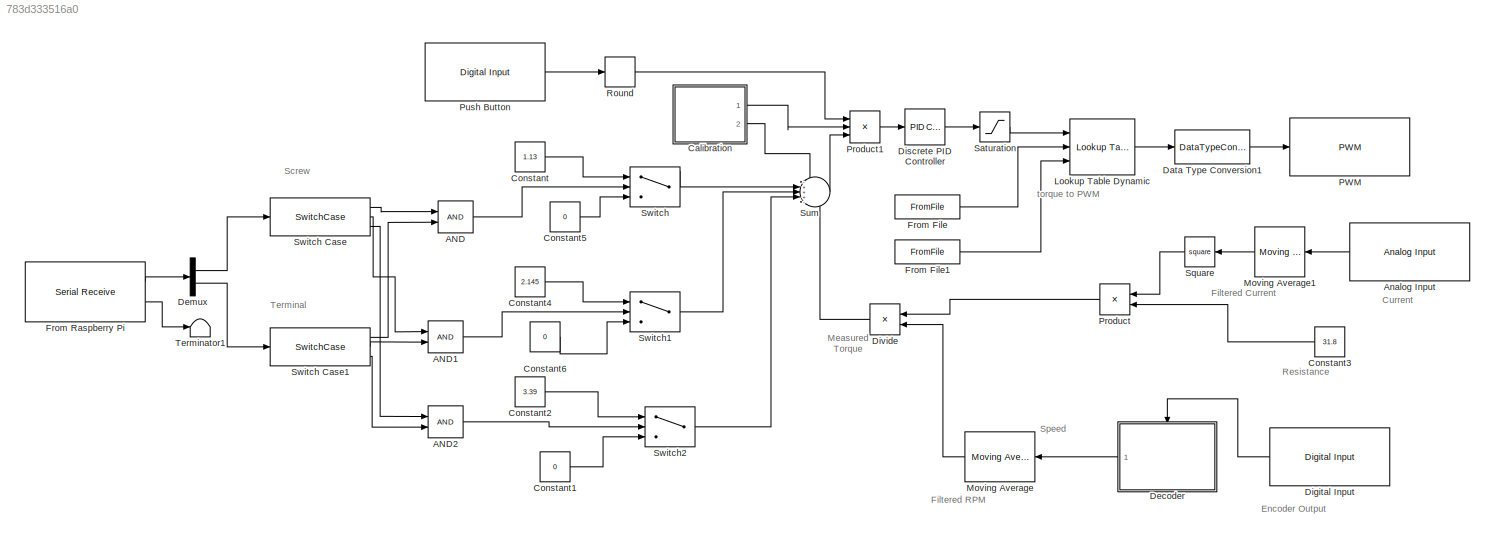
MODEL slx_783d333516a0
KIND model
CONFIG AbsTol = auto
CONFIG EnableMultiTasking = off
CONFIG FixedStep = auto
CONFIG MaxStep = auto
CONFIG MinStep = auto
CONFIG RelTol = 1e-3
CONFIG SampleTimeConstraint = Unconstrained
CONFIG Solver = VariableStepAuto
CONFIG SolverName = VariableStepAuto
CONFIG StartTime = 0.0
CONFIG StopTime = 10.0
BLOCK [Logic] AND
  AllPortsSameDT = off
  IconShape = distinctive
  OutDataTypeStr = boolean
  Ports = [2, 1]
BLOCK [Logic] AND1
  AllPortsSameDT = off
  IconShape = distinctive
  OutDataTypeStr = boolean
  Ports = [2, 1]
BLOCK [Logic] AND2
  AllPortsSameDT = off
  IconShape = distinctive
  OutDataTypeStr = boolean
  Ports = [2, 1]
BLOCK [Reference] Analog Input  REF=arduinolib/Analog Input
  Ports = [0, 1]
  SourceBlock = arduinolib/Analog Input
  SourceProductBaseCode = ARDUINO
  SourceType = Arduino Analog Input
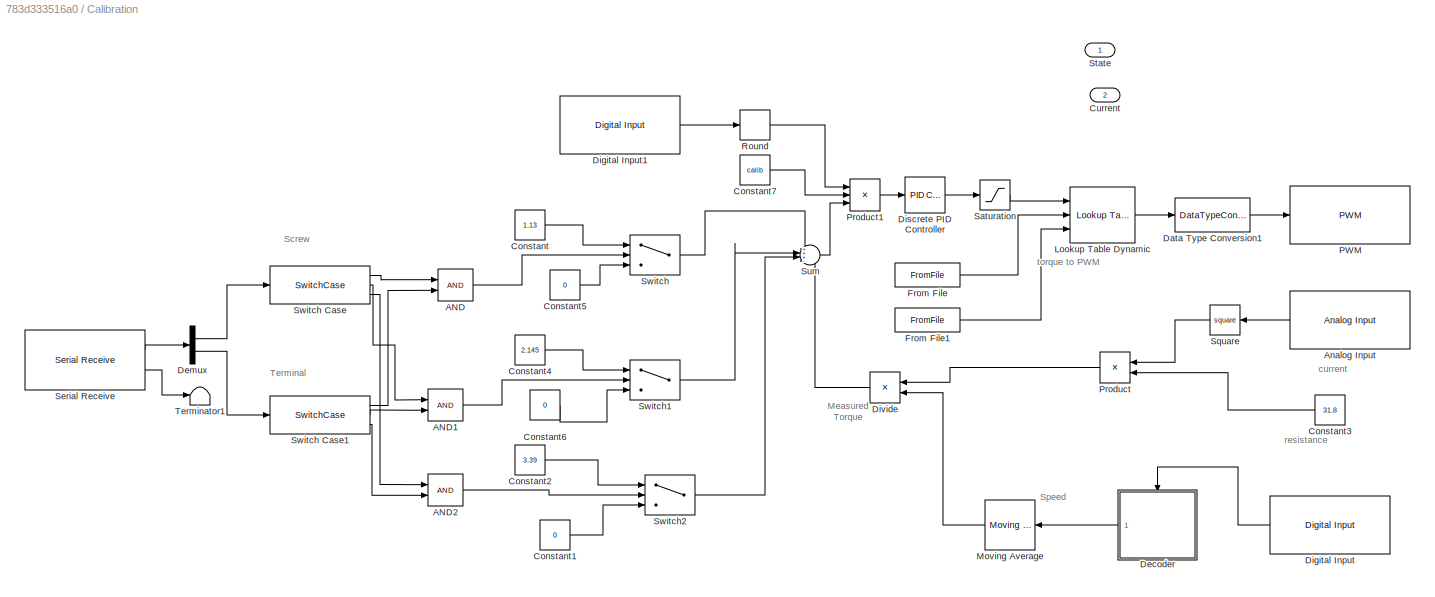
BLOCK [SubSystem] Calibration 
  Ports = [0, 2]
  RequestExecContextInheritance = off
BLOCK [Logic] Calibration /AND
  AllPortsSameDT = off
  IconShape = distinctive
  OutDataTypeStr = boolean
  Ports = [2, 1]
BLOCK [Logic] Calibration /AND1
  AllPortsSameDT = off
  IconShape = distinctive
  OutDataTypeStr = boolean
  Ports = [2, 1]
BLOCK [Logic] Calibration /AND2
  AllPortsSameDT = off
  IconShape = distinctive
  OutDataTypeStr = boolean
  Ports = [2, 1]
BLOCK [Reference] Calibration /Analog Input  REF=arduinolib/Analog Input
  Ports = [0, 1]
  SourceBlock = arduinolib/Analog Input
  SourceProductBaseCode = ARDUINO
  SourceType = Arduino Analog Input
BLOCK [Constant] Calibration /Constant
  Value = 1.13
BLOCK [Constant] Calibration /Constant1
  Value = 0
BLOCK [Constant] Calibration /Constant2
  Value = 3.39
BLOCK [Constant] Calibration /Constant3
  Value = 31.8
BLOCK [Constant] Calibration /Constant4
  Value = 2.145
BLOCK [Constant] Calibration /Constant5
  Value = 0
BLOCK [Constant] Calibration /Constant6
  Value = 0
BLOCK [Constant] Calibration /Constant7
  Value = calib
BLOCK [Outport] Calibration /Current 
  IconDisplay = Port number
  Port = 2
BLOCK [DataTypeConversion] Calibration /Data Type Conversion1
  OutMax = [255]
  OutMin = [0]
  RndMeth = Floor
  SaturateOnIntegerOverflow = off
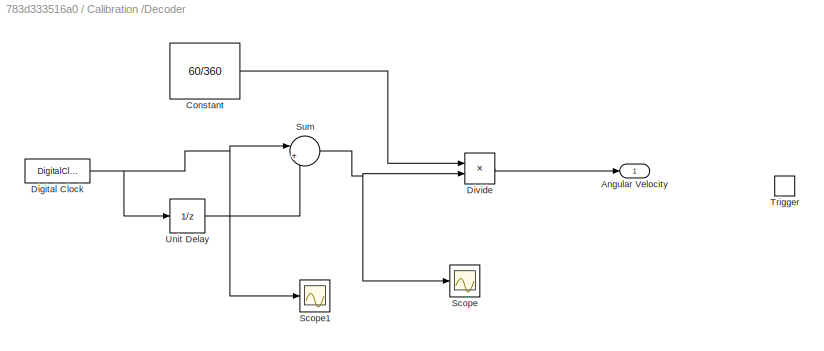
BLOCK [SubSystem] Calibration /Decoder 
  Ports = [0, 1, 0, 1]
  RequestExecContextInheritance = off
BLOCK [Outport] Calibration /Decoder /Angular Velocity 
  IconDisplay = Port number
  VectorParamsAs1DForOutWhenUnconnected = off
BLOCK [Constant] Calibration /Decoder /Constant
  SampleTime = -1
  Value = 60/360
BLOCK [DigitalClock] Calibration /Decoder /Digital Clock
  SampleTime = -1
BLOCK [Product] Calibration /Decoder /Divide
  InputSameDT = off
  Inputs = */
  OutDataTypeStr = Inherit: Inherit via internal rule
  Ports = [2, 1]
  RndMeth = Floor
  SaturateOnIntegerOverflow = off
BLOCK [Scope] Calibration /Decoder /Scope
  Floating = off
  NumInputPorts = 1
  Ports = [1]
  ScopeSpecificationString = Simulink.scopes.TimeScopeBlockCfg('CurrentConfiguration', extmgr.ConfigurationSet(extmgr.Configuration('Core','General UI',true),extmgr.Configuration('Core','Source UI',true),extmgr.Configuration('Sources','WiredSimulink',true,'DataLoggingVariableName','ScopeData2'),extmgr.Configuration('Visuals','Time Domain',true,'SerializedDisplays',{struct('MinYLimReal','0.0499999999999987','MaxYLimReal','0.05...<+1475ch>
BLOCK [Scope] Calibration /Decoder /Scope1
  Floating = off
  NumInputPorts = 1
  Ports = [1]
  ScopeSpecificationString = Simulink.scopes.TimeScopeBlockCfg('CurrentConfiguration', extmgr.ConfigurationSet(extmgr.Configuration('Core','General UI',true),extmgr.Configuration('Core','Source UI',true),extmgr.Configuration('Sources','WiredSimulink',true,'DataLoggingVariableName','ScopeData3'),extmgr.Configuration('Visuals','Time Domain',true,'SerializedDisplays',{struct('MinYLimReal','-1.19375','MaxYLimReal','11.24375','YLa...<+1403ch>
BLOCK [Sum] Calibration /Decoder /Sum
  IconShape = round
  InputSameDT = off
  Inputs = |+-
  OutDataTypeStr = Inherit: Inherit via internal rule
  Ports = [2, 1]
  SaturateOnIntegerOverflow = off
BLOCK [TriggerPort] Calibration /Decoder /Trigger
  OutputDataType = double
  PortDimensions = 1
  Ports = []
  StatesWhenEnabling = held
  TriggerType = either
  VariantControl = Variant
BLOCK [UnitDelay] Calibration /Decoder /Unit Delay
  HasFrameUpgradeWarning = on
  SampleTime = -1
BLOCK [Demux] Calibration /Demux
  DisplayOption = bar
  Outputs = 2
  Ports = [1, 2]
BLOCK [Reference] Calibration /Digital Input  REF=arduinolib/Digital Input
  Ports = [0, 1]
  SourceBlock = arduinolib/Digital Input
  SourceProductBaseCode = ARDUINO
  SourceProductName = Simulink Support Package for Arduino Hardware
  SourceType = Arduino Digital Input
BLOCK [Reference] Calibration /Digital Input1  REF=arduinolib/Digital Input
  Ports = [0, 1]
  SourceBlock = arduinolib/Digital Input
  SourceProductBaseCode = ARDUINO
  SourceProductName = Simulink Support Package for Arduino Hardware
  SourceType = Arduino Digital Input
BLOCK [Reference] Calibration /Discrete PID Controller  REF=simulink/Continuous/PID Controller
  Ports = [1, 1]
  SourceBlock = simulink/Continuous/PID Controller
  SourceProductBaseCode = SL
  SourceType = PID 1dof
BLOCK [Product] Calibration /Divide
  InputSameDT = off
  Inputs = */
  OutDataTypeStr = Inherit: Inherit via internal rule
  Ports = [2, 1]
  RndMeth = Floor
  SaturateOnIntegerOverflow = off
BLOCK [FromFile] Calibration /From File
  FileName = torques.txt
  SampleTime = 0
BLOCK [FromFile] Calibration /From File1
  FileName = PWMs.txt
  SampleTime = 0
BLOCK [Reference] Calibration /Lookup Table Dynamic  REF=simulink/Lookup
Tables/Lookup
Table
Dynamic
  Ports = [3, 1]
  SourceBlock = simulink/Lookup\nTables/Lookup\nTable\nDynamic
  SourceProductBaseCode = SL
  SourceType = Lookup Table Dynamic
BLOCK [Reference] Calibration /Moving Average  REF=dspstat3/Moving
Average
  Ports = [1, 1]
  SourceBlock = dspstat3/Moving\nAverage
  SourceProductBaseCode = DS
  SourceProductName = DSP System Toolbox
  SourceType = dsp.simulink.MovingAverage
BLOCK [Reference] Calibration /PWM  REF=arduinolib/PWM
  Ports = [1]
  SourceBlock = arduinolib/PWM
  SourceProductBaseCode = ARDUINO
  SourceType = Arduino PWM
BLOCK [Product] Calibration /Product
  InputSameDT = off
  OutDataTypeStr = Inherit: Inherit via internal rule
  Ports = [2, 1]
  RndMeth = Floor
  SaturateOnIntegerOverflow = off
BLOCK [Product] Calibration /Product1
  InputSameDT = off
  Inputs = 3
  OutDataTypeStr = Inherit: Inherit via internal rule
  Ports = [3, 1]
  RndMeth = Floor
  SaturateOnIntegerOverflow = off
BLOCK [Rounding] Calibration /Round
  Operator = round
BLOCK [Saturate] Calibration /Saturation
  InputPortMap = u0
  Ports = [1, 1]
BLOCK [Reference] Calibration /Serial Receive  REF=arduinolib/Serial Receive
  Ports = [0, 2]
  SourceBlock = arduinolib/Serial Receive
  SourceProductBaseCode = ARDUINO
  SourceProductName = Simulink Support Package for Arduino Hardware
  SourceType = Arduino Serial Receive
BLOCK [Math] Calibration /Square
  Operator = square
  Ports = [1, 1]
  SignedPower = off
BLOCK [Outport] Calibration /State
  IconDisplay = Port number
BLOCK [Sum] Calibration /Sum
  IconShape = round
  InputSameDT = off
  Inputs = +++-
  OutDataTypeStr = Inherit: Inherit via internal rule
  Ports = [4, 1]
  SaturateOnIntegerOverflow = off
BLOCK [Switch] Calibration /Switch
  Criteria = u2 > Threshold
  InputSameDT = off
  SaturateOnIntegerOverflow = off
BLOCK [SwitchCase] Calibration /Switch Case
  CaseConditions = {1, 2, 3}
  Ports = [1, 3]
  ShowDefaultCase = off
BLOCK [SwitchCase] Calibration /Switch Case1
  CaseConditions = {1, 2, 3}
  Ports = [1, 3]
  ShowDefaultCase = off
BLOCK [Switch] Calibration /Switch1
  Criteria = u2 > Threshold
  InputSameDT = off
  SaturateOnIntegerOverflow = off
BLOCK [Switch] Calibration /Switch2
  Criteria = u2 > Threshold
  InputSameDT = off
  SaturateOnIntegerOverflow = off
BLOCK [Terminator] Calibration /Terminator1
BLOCK [Constant] Constant
  Value = 1.13
BLOCK [Constant] Constant1
  Value = 0
BLOCK [Constant] Constant2
  Value = 3.39
BLOCK [Constant] Constant3
  Value = 31.8
BLOCK [Constant] Constant4
  Value = 2.145
BLOCK [Constant] Constant5
  Value = 0
BLOCK [Constant] Constant6
  Value = 0
BLOCK [DataTypeConversion] Data Type Conversion1
  OutMax = [255]
  OutMin = [0]
  RndMeth = Floor
  SaturateOnIntegerOverflow = off
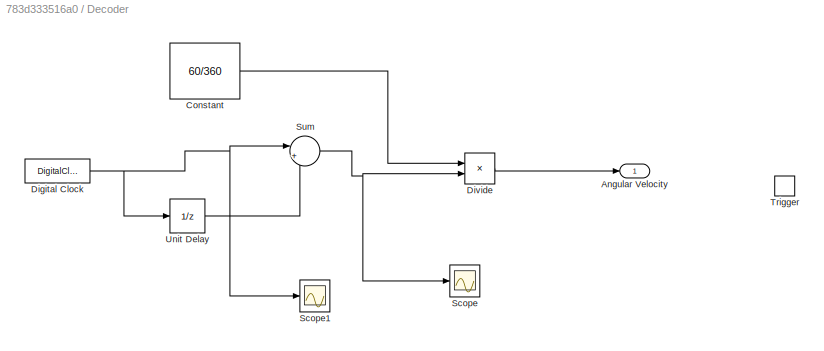
BLOCK [SubSystem] Decoder 
  Ports = [0, 1, 0, 1]
  RequestExecContextInheritance = off
BLOCK [Outport] Decoder /Angular Velocity 
  IconDisplay = Port number
  VectorParamsAs1DForOutWhenUnconnected = off
BLOCK [Constant] Decoder /Constant
  SampleTime = -1
  Value = 60/360
BLOCK [DigitalClock] Decoder /Digital Clock
  SampleTime = -1
BLOCK [Product] Decoder /Divide
  InputSameDT = off
  Inputs = */
  OutDataTypeStr = Inherit: Inherit via internal rule
  Ports = [2, 1]
  RndMeth = Floor
  SaturateOnIntegerOverflow = off
BLOCK [Scope] Decoder /Scope
  Floating = off
  NumInputPorts = 1
  Ports = [1]
  ScopeSpecificationString = Simulink.scopes.TimeScopeBlockCfg('CurrentConfiguration', extmgr.ConfigurationSet(extmgr.Configuration('Core','General UI',true),extmgr.Configuration('Core','Source UI',true),extmgr.Configuration('Sources','WiredSimulink',true,'DataLoggingVariableName','ScopeData2'),extmgr.Configuration('Visuals','Time Domain',true,'SerializedDisplays',{struct('MinYLimReal','0.0499999999999987','MaxYLimReal','0.05...<+1475ch>
BLOCK [Scope] Decoder /Scope1
  Floating = off
  NumInputPorts = 1
  Ports = [1]
  ScopeSpecificationString = Simulink.scopes.TimeScopeBlockCfg('CurrentConfiguration', extmgr.ConfigurationSet(extmgr.Configuration('Core','General UI',true),extmgr.Configuration('Core','Source UI',true),extmgr.Configuration('Sources','WiredSimulink',true,'DataLoggingVariableName','ScopeData3'),extmgr.Configuration('Visuals','Time Domain',true,'SerializedDisplays',{struct('MinYLimReal','-1.19375','MaxYLimReal','11.24375','YLa...<+1403ch>
BLOCK [Sum] Decoder /Sum
  IconShape = round
  InputSameDT = off
  Inputs = |+-
  OutDataTypeStr = Inherit: Inherit via internal rule
  Ports = [2, 1]
  SaturateOnIntegerOverflow = off
BLOCK [TriggerPort] Decoder /Trigger
  OutputDataType = double
  PortDimensions = 1
  Ports = []
  StatesWhenEnabling = held
  TriggerType = either
  VariantControl = Variant
BLOCK [UnitDelay] Decoder /Unit Delay
  HasFrameUpgradeWarning = on
  SampleTime = -1
BLOCK [Demux] Demux
  DisplayOption = bar
  Outputs = 2
  Ports = [1, 2]
BLOCK [Reference] Digital Input  REF=arduinolib/Digital Input
  Ports = [0, 1]
  SourceBlock = arduinolib/Digital Input
  SourceProductBaseCode = ARDUINO
  SourceProductName = Simulink Support Package for Arduino Hardware
  SourceType = Arduino Digital Input
BLOCK [Reference] Discrete PID Controller  REF=simulink/Continuous/PID Controller
  Ports = [1, 1]
  SourceBlock = simulink/Continuous/PID Controller
  SourceProductBaseCode = SL
  SourceType = PID 1dof
BLOCK [Product] Divide
  InputSameDT = off
  Inputs = */
  OutDataTypeStr = Inherit: Inherit via internal rule
  Ports = [2, 1]
  RndMeth = Floor
  SaturateOnIntegerOverflow = off
BLOCK [FromFile] From File
  FileName = torques.txt
  SampleTime = 0
BLOCK [FromFile] From File1
  FileName = PWMs.txt
  SampleTime = 0
BLOCK [Reference] From Raspberry Pi   REF=arduinolib/Serial Receive
  Ports = [0, 2]
  SourceBlock = arduinolib/Serial Receive
  SourceProductBaseCode = ARDUINO
  SourceProductName = Simulink Support Package for Arduino Hardware
  SourceType = Arduino Serial Receive
BLOCK [Reference] Lookup Table Dynamic  REF=simulink/Lookup
Tables/Lookup
Table
Dynamic
  Ports = [3, 1]
  SourceBlock = simulink/Lookup\nTables/Lookup\nTable\nDynamic
  SourceProductBaseCode = SL
  SourceType = Lookup Table Dynamic
BLOCK [Reference] Moving Average  REF=dspstat3/Moving
Average
  Ports = [1, 1]
  SourceBlock = dspstat3/Moving\nAverage
  SourceProductBaseCode = DS
  SourceProductName = DSP System Toolbox
  SourceType = dsp.simulink.MovingAverage
BLOCK [Reference] Moving Average1  REF=dspstat3/Moving
Average
  Ports = [1, 1]
  SourceBlock = dspstat3/Moving\nAverage
  SourceProductBaseCode = DS
  SourceProductName = DSP System Toolbox
  SourceType = dsp.simulink.MovingAverage
BLOCK [Reference] PWM  REF=arduinolib/PWM
  Ports = [1]
  SourceBlock = arduinolib/PWM
  SourceProductBaseCode = ARDUINO
  SourceType = Arduino PWM
BLOCK [Product] Product
  InputSameDT = off
  OutDataTypeStr = Inherit: Inherit via internal rule
  Ports = [2, 1]
  RndMeth = Floor
  SaturateOnIntegerOverflow = off
BLOCK [Product] Product1
  InputSameDT = off
  Inputs = 3
  OutDataTypeStr = Inherit: Inherit via internal rule
  Ports = [3, 1]
  RndMeth = Floor
  SaturateOnIntegerOverflow = off
BLOCK [Reference] Push Button   REF=arduinolib/Digital Input
  Ports = [0, 1]
  SourceBlock = arduinolib/Digital Input
  SourceProductBaseCode = ARDUINO
  SourceProductName = Simulink Support Package for Arduino Hardware
  SourceType = Arduino Digital Input
BLOCK [Rounding] Round
  Operator = round
BLOCK [Saturate] Saturation
  InputPortMap = u0
  Ports = [1, 1]
BLOCK [Math] Square
  Operator = square
  Ports = [1, 1]
  SignedPower = off
BLOCK [Sum] Sum
  IconShape = round
  InputSameDT = off
  Inputs = -+++-
  OutDataTypeStr = Inherit: Inherit via internal rule
  Ports = [5, 1]
  SaturateOnIntegerOverflow = off
BLOCK [Switch] Switch
  Criteria = u2 > Threshold
  InputSameDT = off
  SaturateOnIntegerOverflow = off
BLOCK [SwitchCase] Switch Case
  CaseConditions = {1, 2, 3}
  Ports = [1, 3]
  ShowDefaultCase = off
BLOCK [SwitchCase] Switch Case1
  CaseConditions = {1, 2, 3}
  Ports = [1, 3]
  ShowDefaultCase = off
BLOCK [Switch] Switch1
  Criteria = u2 > Threshold
  InputSameDT = off
  SaturateOnIntegerOverflow = off
BLOCK [Switch] Switch2
  Criteria = u2 > Threshold
  InputSameDT = off
  SaturateOnIntegerOverflow = off
BLOCK [Terminator] Terminator1
ANNOTATION (root): Filtered RPM
ANNOTATION (root): Measured Torque
ANNOTATION (root): Screw
ANNOTATION (root): Speed
ANNOTATION (root): Terminal
ANNOTATION (root): Current
ANNOTATION (root): Encoder Output
ANNOTATION (root): Filtered Current
ANNOTATION (root): Resistance
ANNOTATION (root): torque to PWM
ANNOTATION Calibration : Measured Torque
ANNOTATION Calibration : Screw
ANNOTATION Calibration : Speed
ANNOTATION Calibration : Terminal
ANNOTATION Calibration : current
ANNOTATION Calibration : resistance
ANNOTATION Calibration : torque to PWM
LINE AND1:1 -> Switch1:2
LINE AND2:1 -> Switch2:2
LINE AND:1 -> Switch:2
LINE Analog Input:1 -> Moving Average1:1
LINE Calibration /AND1:1 -> Calibration /Switch1:2
LINE Calibration /AND2:1 -> Calibration /Switch2:2
LINE Calibration /AND:1 -> Calibration /Switch:2
LINE Calibration /Analog Input:1 -> Calibration /Square:1
LINE Calibration /Constant1:1 -> Calibration /Switch2:3
LINE Calibration /Constant2:1 -> Calibration /Switch2:1
LINE Calibration /Constant3:1 -> Calibration /Product:2
LINE Calibration /Constant4:1 -> Calibration /Switch1:1
LINE Calibration /Constant5:1 -> Calibration /Switch:3
LINE Calibration /Constant6:1 -> Calibration /Switch1:3
LINE Calibration /Constant7:1 -> Calibration /Product1:2
LINE Calibration /Constant:1 -> Calibration /Switch:1
LINE Calibration /Data Type Conversion1:1 -> Calibration /PWM:1
LINE Calibration /Decoder /Constant:1 -> Calibration /Decoder /Divide:1
NET Calibration /Decoder /Digital Clock:1 -> Calibration /Decoder /Scope1:1, Calibration /Decoder /Sum:1, Calibration /Decoder /Unit Delay:1
LINE Calibration /Decoder /Divide:1 -> Calibration /Decoder /Angular Velocity :1
NET Calibration /Decoder /Sum:1 -> Calibration /Decoder /Divide:2, Calibration /Decoder /Scope:1
LINE Calibration /Decoder /Unit Delay:1 -> Calibration /Decoder /Sum:2
LINE Calibration /Decoder :1 -> Calibration /Moving Average:1
LINE Calibration /Demux:1 -> Calibration /Switch Case:1
LINE Calibration /Demux:2 -> Calibration /Switch Case1:1
LINE Calibration /Digital Input1:1 -> Calibration /Round:1
LINE Calibration /Digital Input:1 -> Calibration /Decoder :trigger
LINE Calibration /Discrete PID Controller:1 -> Calibration /Saturation:1
LINE Calibration /Divide:1 -> Calibration /Sum:4
LINE Calibration /From File1:1 -> Calibration /Lookup Table Dynamic:3
LINE Calibration /From File:1 -> Calibration /Lookup Table Dynamic:2
LINE Calibration /Lookup Table Dynamic:1 -> Calibration /Data Type Conversion1:1
LINE Calibration /Moving Average:1 -> Calibration /Divide:2
LINE Calibration /Product1:1 -> Calibration /Discrete PID Controller:1
LINE Calibration /Product:1 -> Calibration /Divide:1
LINE Calibration /Round:1 -> Calibration /Product1:1
LINE Calibration /Saturation:1 -> Calibration /Lookup Table Dynamic:1
LINE Calibration /Serial Receive:1 -> Calibration /Demux:1
LINE Calibration /Serial Receive:2 -> Calibration /Terminator1:1
LINE Calibration /Square:1 -> Calibration /Product:1
LINE Calibration /Sum:1 -> Calibration /Product1:3
LINE Calibration /Switch Case1:1 -> Calibration /AND:2
LINE Calibration /Switch Case1:2 -> Calibration /AND1:2
LINE Calibration /Switch Case1:3 -> Calibration /AND2:2
LINE Calibration /Switch Case:1 -> Calibration /AND:1
LINE Calibration /Switch Case:2 -> Calibration /AND1:1
LINE Calibration /Switch Case:3 -> Calibration /AND2:1
LINE Calibration /Switch1:1 -> Calibration /Sum:2
LINE Calibration /Switch2:1 -> Calibration /Sum:3
LINE Calibration /Switch:1 -> Calibration /Sum:1
LINE Calibration :1 -> Product1:2
LINE Calibration :2 -> Sum:1
LINE Constant1:1 -> Switch2:3
LINE Constant2:1 -> Switch2:1
LINE Constant3:1 -> Product:2
LINE Constant4:1 -> Switch1:1
LINE Constant5:1 -> Switch:3
LINE Constant6:1 -> Switch1:3
LINE Constant:1 -> Switch:1
LINE Data Type Conversion1:1 -> PWM:1
LINE Decoder /Constant:1 -> Decoder /Divide:1
NET Decoder /Digital Clock:1 -> Decoder /Scope1:1, Decoder /Sum:1, Decoder /Unit Delay:1
LINE Decoder /Divide:1 -> Decoder /Angular Velocity :1
NET Decoder /Sum:1 -> Decoder /Divide:2, Decoder /Scope:1
LINE Decoder /Unit Delay:1 -> Decoder /Sum:2
LINE Decoder :1 -> Moving Average:1
LINE Demux:1 -> Switch Case:1
LINE Demux:2 -> Switch Case1:1
LINE Digital Input:1 -> Decoder :trigger
LINE Discrete PID Controller:1 -> Saturation:1
LINE Divide:1 -> Sum:5
LINE From File1:1 -> Lookup Table Dynamic:3
LINE From File:1 -> Lookup Table Dynamic:2
LINE From Raspberry Pi :1 -> Demux:1
LINE From Raspberry Pi :2 -> Terminator1:1
LINE Lookup Table Dynamic:1 -> Data Type Conversion1:1
LINE Moving Average1:1 -> Square:1
LINE Moving Average:1 -> Divide:2
LINE Product1:1 -> Discrete PID Controller:1
LINE Product:1 -> Divide:1
LINE Push Button :1 -> Round:1
LINE Round:1 -> Product1:1
LINE Saturation:1 -> Lookup Table Dynamic:1
LINE Square:1 -> Product:1
LINE Sum:1 -> Product1:3
LINE Switch Case1:1 -> AND:2
LINE Switch Case1:2 -> AND1:2
LINE Switch Case1:3 -> AND2:2
LINE Switch Case:1 -> AND:1
LINE Switch Case:2 -> AND1:1
LINE Switch Case:3 -> AND2:1
LINE Switch1:1 -> Sum:3
LINE Switch2:1 -> Sum:4
LINE Switch:1 -> Sum:2
note: NET lines group one-source signal fan-out (src -> all destinations, sorted); 1:1 wires keep LINE
